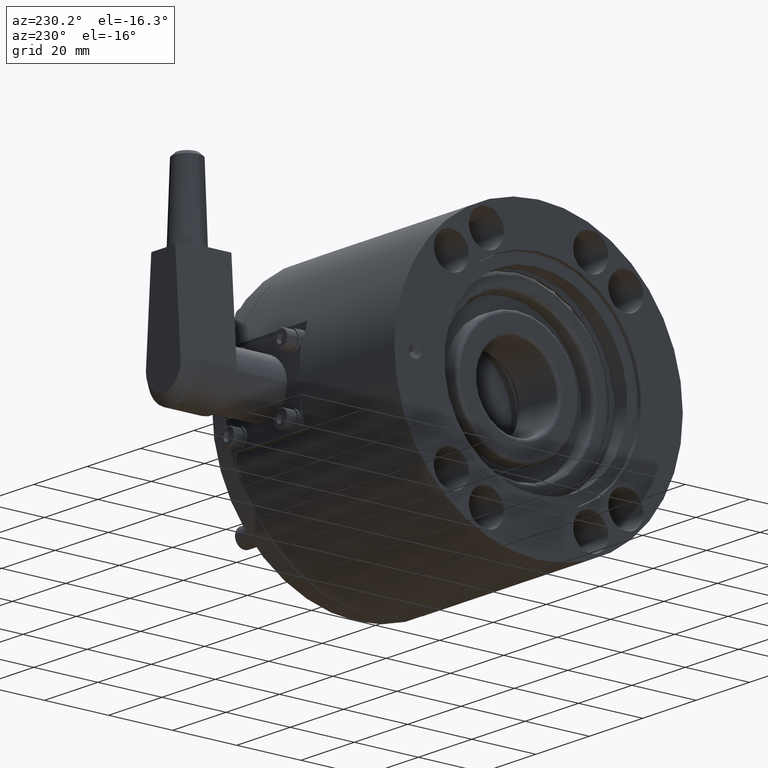
[diagram: clean part render]
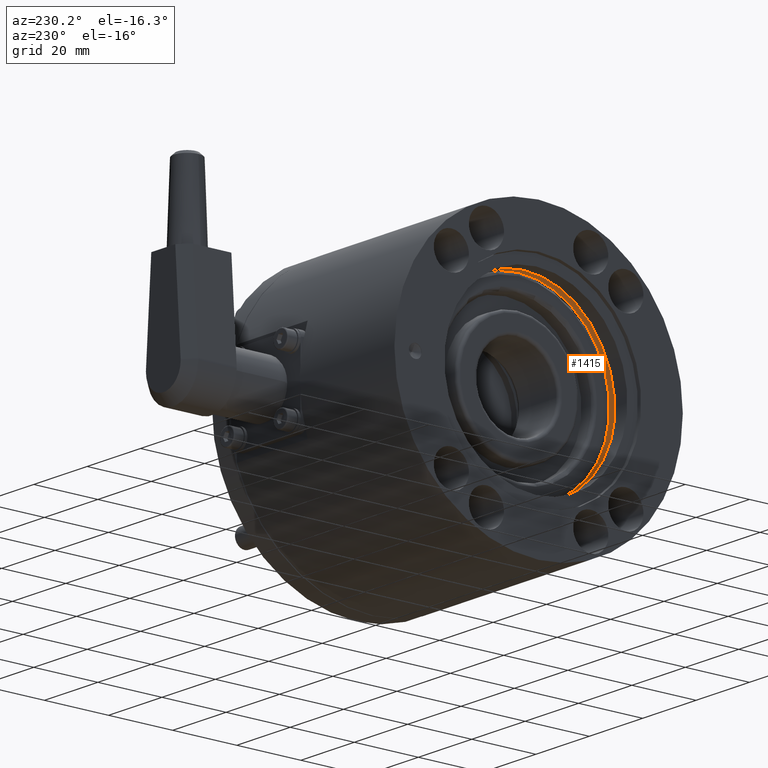
[diagram: same view with one face highlighted and labeled with its STEP entity id]
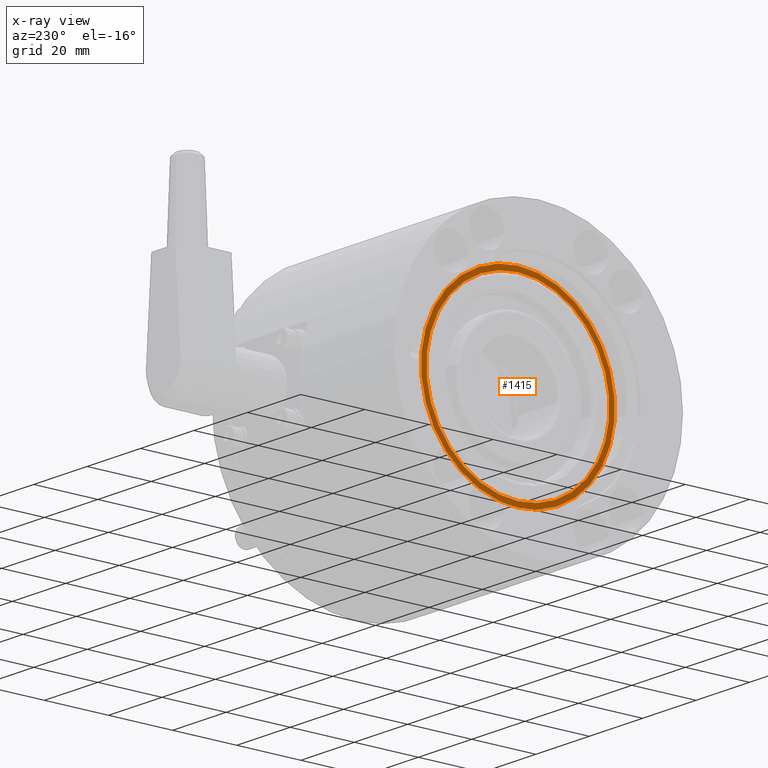
[diagram: x-ray of the same camera — body ghosted, the highlighted face saturated]
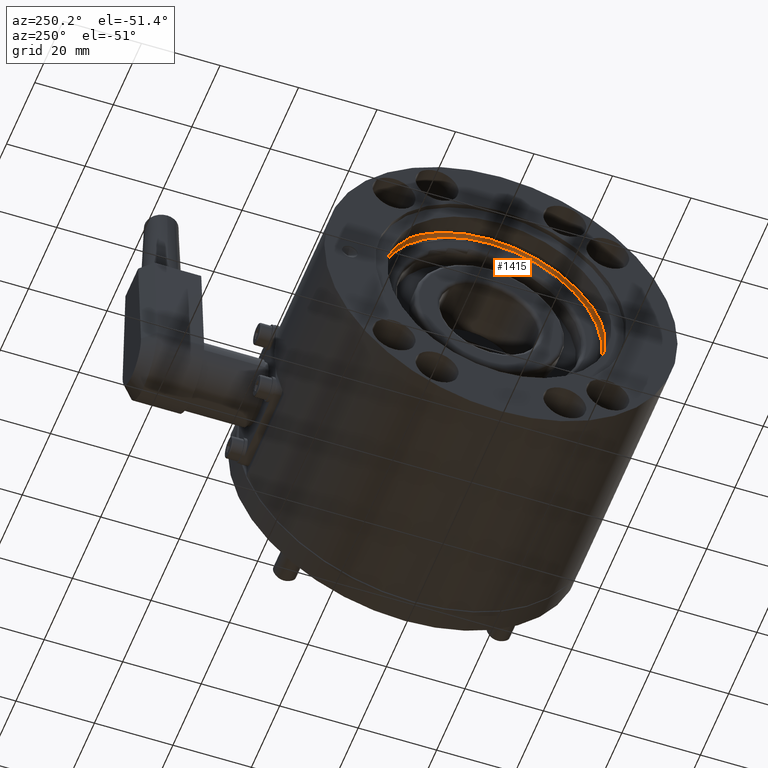
[diagram: same view with one face highlighted and labeled with its STEP entity id]
A machine part, auxiliary view. The second image highlights one B-rep face of the part: STEP entity #1415.
The next image is the same camera in x-ray: the body ghosted, the highlighted face saturated — about 0% of this face is hidden behind the body in this view.
A second angle (auxiliary view) of the same face is appended — the face is thin or edge-on in the first view.
In plain terms, the highlighted planar face has unit normal (1, 0, 0).
Its self-contained STEP definition (entity closure, byte-faithful):
#477 = PLANE ( 'NONE',  #5032 ) ;
#520 = CARTESIAN_POINT ( 'NONE',  ( 6.699999999999997513, 3.499428228563562065E-15, -28.57499999999999929 ) ) ;
#547 = CARTESIAN_POINT ( 'NONE',  ( 6.699999999999997513, 0.000000000000000000, 0.000000000000000000 ) ) ;
#1415 = ADVANCED_FACE ( 'NONE', ( #12681, #6895 ), #477, .F. ) ;
#2189 = EDGE_LOOP ( 'NONE', ( #5943, #4008 ) ) ;
#2363 = DIRECTION ( 'NONE',  ( 0.000000000000000000, 0.000000000000000000, 1.000000000000000000 ) ) ;
#3667 = CARTESIAN_POINT ( 'NONE',  ( 6.699999999999999289, 30.25000000000000000, 0.000000000000000000 ) ) ;
#3738 = DIRECTION ( 'NONE',  ( -1.000000000000000000, -0.000000000000000000, -0.000000000000000000 ) ) ;
#3982 = AXIS2_PLACEMENT_3D ( 'NONE', #7731, #6733, #2363 ) ;
#4008 = ORIENTED_EDGE ( 'NONE', *, *, #11742, .T. ) ;
#4035 = CARTESIAN_POINT ( 'NONE',  ( 6.699999999999997513, 0.000000000000000000, 28.57499999999999929 ) ) ;
#4405 = DIRECTION ( 'NONE',  ( -1.000000000000000000, -0.000000000000000000, -0.000000000000000000 ) ) ;
#4494 = EDGE_CURVE ( 'NONE', #9949, #9652, #9616, .T. ) ;
#4741 = CARTESIAN_POINT ( 'NONE',  ( 6.699999999999997513, 3.704556567420743754E-15, -30.25000000000000000 ) ) ;
#4743 = DIRECTION ( 'NONE',  ( 1.000000000000000000, 0.000000000000000000, 0.000000000000000000 ) ) ;
#5032 = AXIS2_PLACEMENT_3D ( 'NONE', #3667, #4743, #12162 ) ;
#5417 = DIRECTION ( 'NONE',  ( -1.000000000000000000, -0.000000000000000000, -0.000000000000000000 ) ) ;
#5943 = ORIENTED_EDGE ( 'NONE', *, *, #11834, .T. ) ;
#6508 = CARTESIAN_POINT ( 'NONE',  ( 6.699999999999997513, 0.000000000000000000, 0.000000000000000000 ) ) ;
#6679 = AXIS2_PLACEMENT_3D ( 'NONE', #6508, #4405, #12889 ) ;
#6733 = DIRECTION ( 'NONE',  ( -1.000000000000000000, -0.000000000000000000, -0.000000000000000000 ) ) ;
#6895 = FACE_OUTER_BOUND ( 'NONE', #2189, .T. ) ;
#7065 = VERTEX_POINT ( 'NONE', #12632 ) ;
#7731 = CARTESIAN_POINT ( 'NONE',  ( 6.699999999999997513, 0.000000000000000000, 0.000000000000000000 ) ) ;
#7773 = VERTEX_POINT ( 'NONE', #4741 ) ;
#8368 = EDGE_LOOP ( 'NONE', ( #11123, #8843 ) ) ;
#8370 = CIRCLE ( 'NONE', #11368, 30.25000000000000000 ) ;
#8843 = ORIENTED_EDGE ( 'NONE', *, *, #13373, .F. ) ;
#9616 = CIRCLE ( 'NONE', #6679, 28.57499999999999929 ) ;
#9634 = CARTESIAN_POINT ( 'NONE',  ( 6.699999999999997513, 0.000000000000000000, 0.000000000000000000 ) ) ;
#9652 = VERTEX_POINT ( 'NONE', #520 ) ;
#9949 = VERTEX_POINT ( 'NONE', #4035 ) ;
#10052 = CIRCLE ( 'NONE', #3982, 30.25000000000000000 ) ;
#10239 = DIRECTION ( 'NONE',  ( 0.000000000000000000, 0.000000000000000000, 1.000000000000000000 ) ) ;
#11002 = CIRCLE ( 'NONE', #11462, 28.57499999999999929 ) ;
#11123 = ORIENTED_EDGE ( 'NONE', *, *, #4494, .F. ) ;
#11368 = AXIS2_PLACEMENT_3D ( 'NONE', #9634, #5417, #12690 ) ;
#11462 = AXIS2_PLACEMENT_3D ( 'NONE', #547, #3738, #10239 ) ;
#11742 = EDGE_CURVE ( 'NONE', #7773, #7065, #8370, .T. ) ;
#11834 = EDGE_CURVE ( 'NONE', #7065, #7773, #10052, .T. ) ;
#12162 = DIRECTION ( 'NONE',  ( 0.000000000000000000, 0.000000000000000000, -1.000000000000000000 ) ) ;
#12632 = CARTESIAN_POINT ( 'NONE',  ( 6.699999999999997513, 0.000000000000000000, 30.25000000000000000 ) ) ;
#12681 = FACE_BOUND ( 'NONE', #8368, .T. ) ;
#12690 = DIRECTION ( 'NONE',  ( 0.000000000000000000, 0.000000000000000000, 1.000000000000000000 ) ) ;
#12889 = DIRECTION ( 'NONE',  ( 0.000000000000000000, 0.000000000000000000, 1.000000000000000000 ) ) ;
#13373 = EDGE_CURVE ( 'NONE', #9652, #9949, #11002, .T. ) ;